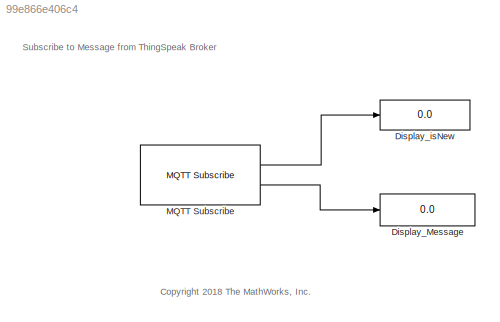
MODEL slx_99e866e406c4
KIND model
CONFIG AbsTol = auto
CONFIG EnableMultiTasking = on
CONFIG FixedStep = auto
CONFIG MaxStep = auto
CONFIG MinStep = auto
CONFIG RelTol = 1e-3
CONFIG SampleTimeConstraint = Unconstrained
CONFIG Solver = FixedStepAuto
CONFIG SolverName = FixedStepAuto
CONFIG StartTime = 0.0
CONFIG StopTime = inf
BLOCK [Display] Display_Message
  Decimation = 1
  Format = long
  Ports = [1]
BLOCK [Display] Display_isNew
  Decimation = 1
  Ports = [1]
BLOCK [Reference] MQTT Subscribe  REF=embdlinuxlib/MQTT Subscribe
  Ports = [0, 2]
  SourceBlock = embdlinuxlib/MQTT Subscribe
  SourceProductBaseCode = RASPPI
  SourceProductName = Simulink Support Package for Raspberry Pi Hardware
  SourceType = codertarget.linux.blocks.MQTTSubscribe
ANNOTATION (root): Subscribe to Message from ThingSpeak Broker
ANNOTATION (root): <copyright redacted>
LINE MQTT Subscribe:1 -> Display_isNew:1
LINE MQTT Subscribe:2 -> Display_Message:1
